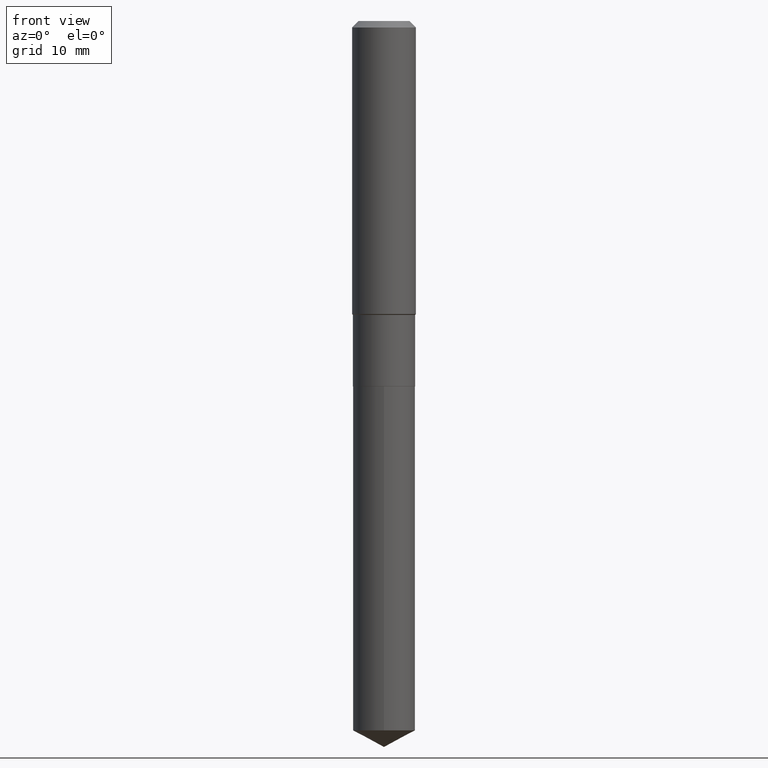
[diagram: clean part render]
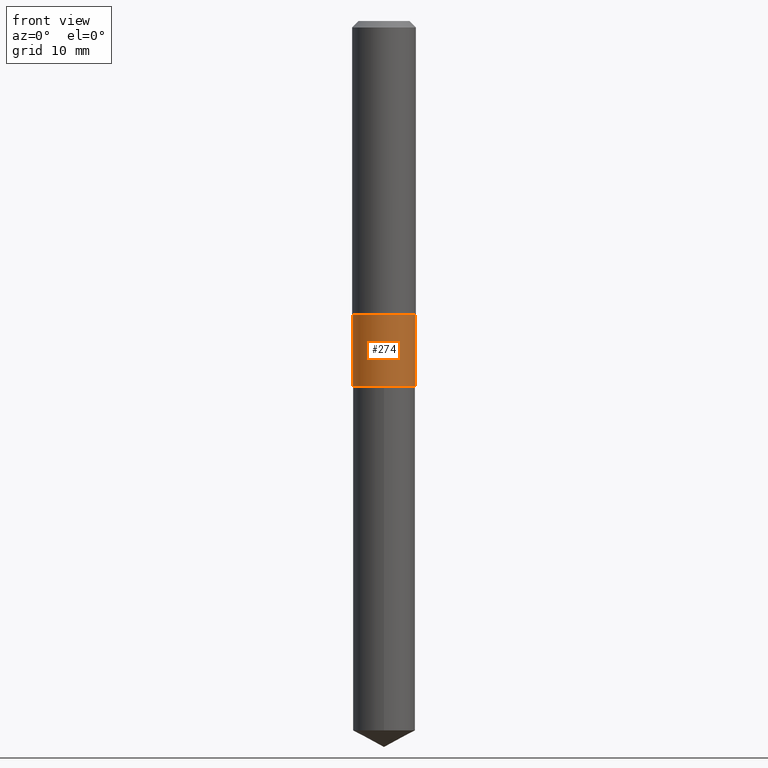
[diagram: same view with one face highlighted and labeled with its STEP entity id]
A machine part, front view. The second image highlights one B-rep face of the part: STEP entity #274.
In plain terms, the highlighted cylindrical surface (edge-blend (fillet) strip) has radius 3.9002 mm, axis along (-0, 0, 1).
Its self-contained STEP definition (entity closure, byte-faithful):
#16 = DIRECTION ( 'NONE',  ( -2.445468806185136597E-29, 3.491481338843145583E-15, 1.000000000000000000 ) ) ;
#18 = AXIS2_PLACEMENT_3D ( 'NONE', #125, #16, #315 ) ;
#32 = VERTEX_POINT ( 'NONE', #226 ) ;
#60 = EDGE_LOOP ( 'NONE', ( #174, #176, #487, #180 ) ) ;
#74 = DIRECTION ( 'NONE',  ( -2.445468806185136877E-29, 3.491481338843145188E-15, 1.000000000000000000 ) ) ;
#82 = CARTESIAN_POINT ( 'NONE',  ( 0.000000000000000000, 0.000000000000000000, 0.000000000000000000 ) ) ;
#109 = CARTESIAN_POINT ( 'NONE',  ( -0.1535499999999999921, -4.587332304667917085E-15, -1.802700000000000191 ) ) ;
#110 = VERTEX_POINT ( 'NONE', #264 ) ;
#113 = CIRCLE ( 'NONE', #413, 0.1535499999999999921 ) ;
#123 = DIRECTION ( 'NONE',  ( -2.445468806185136597E-29, 3.491481338843145583E-15, 1.000000000000000000 ) ) ;
#125 = CARTESIAN_POINT ( 'NONE',  ( 3.545929768968448850E-29, -5.062647941322561509E-15, -1.450000000000000178 ) ) ;
#126 = CIRCLE ( 'NONE', #18, 0.1535499999999999365 ) ;
#136 = EDGE_CURVE ( 'NONE', #336, #402, #113, .T. ) ;
#163 = DIRECTION ( 'NONE',  ( 1.000000000000000000, -6.982962677686269077E-15, 0.000000000000000000 ) ) ;
#173 = DIRECTION ( 'NONE',  ( -2.445468806185136877E-29, 3.491481338843145188E-15, 1.000000000000000000 ) ) ;
#174 = ORIENTED_EDGE ( 'NONE', *, *, #321, .F. ) ;
#176 = ORIENTED_EDGE ( 'NONE', *, *, #136, .T. ) ;
#180 = ORIENTED_EDGE ( 'NONE', *, *, #421, .F. ) ;
#202 = AXIS2_PLACEMENT_3D ( 'NONE', #82, #294, #490 ) ;
#203 = VECTOR ( 'NONE', #74, 39.37007874015748143 ) ;
#226 = CARTESIAN_POINT ( 'NONE',  ( 0.1535499999999999365, -6.134881860481286866E-15, -1.450000000000000178 ) ) ;
#238 = LINE ( 'NONE', #391, #380 ) ;
#264 = CARTESIAN_POINT ( 'NONE',  ( -0.1535499999999999365, -4.587332304667917085E-15, -1.450000000000000178 ) ) ;
#274 = ADVANCED_FACE ( 'NONE', ( #298 ), #343, .T. ) ;
#294 = DIRECTION ( 'NONE',  ( -2.445468806185136597E-29, 3.491481338843145583E-15, 1.000000000000000000 ) ) ;
#298 = FACE_OUTER_BOUND ( 'NONE', #60, .T. ) ;
#307 = CARTESIAN_POINT ( 'NONE',  ( 4.408446616909946105E-29, -6.294093409532539036E-15, -1.802700000000000191 ) ) ;
#309 = CARTESIAN_POINT ( 'NONE',  ( 0.1535499999999999921, -7.366327328691265182E-15, -1.802700000000000191 ) ) ;
#315 = DIRECTION ( 'NONE',  ( 1.000000000000000000, -6.982962677686265133E-15, 0.000000000000000000 ) ) ;
#321 = EDGE_CURVE ( 'NONE', #336, #110, #447, .T. ) ;
#336 = VERTEX_POINT ( 'NONE', #109 ) ;
#343 = CYLINDRICAL_SURFACE ( 'NONE', #202, 0.1535499999999999643 ) ;
#380 = VECTOR ( 'NONE', #173, 39.37007874015748143 ) ;
#391 = CARTESIAN_POINT ( 'NONE',  ( 0.1535499999999999643, -1.072233919158725949E-15, 7.487369439234657779E-30 ) ) ;
#402 = VERTEX_POINT ( 'NONE', #309 ) ;
#413 = AXIS2_PLACEMENT_3D ( 'NONE', #307, #123, #163 ) ;
#414 = CARTESIAN_POINT ( 'NONE',  ( -0.1535499999999999643, 1.091038370759633582E-15, -7.553024831086406471E-30 ) ) ;
#421 = EDGE_CURVE ( 'NONE', #110, #32, #126, .T. ) ;
#436 = EDGE_CURVE ( 'NONE', #402, #32, #238, .T. ) ;
#447 = LINE ( 'NONE', #414, #203 ) ;
#487 = ORIENTED_EDGE ( 'NONE', *, *, #436, .T. ) ;
#490 = DIRECTION ( 'NONE',  ( 1.000000000000000000, -6.982962677686266711E-15, 4.876176775795935793E-29 ) ) ;